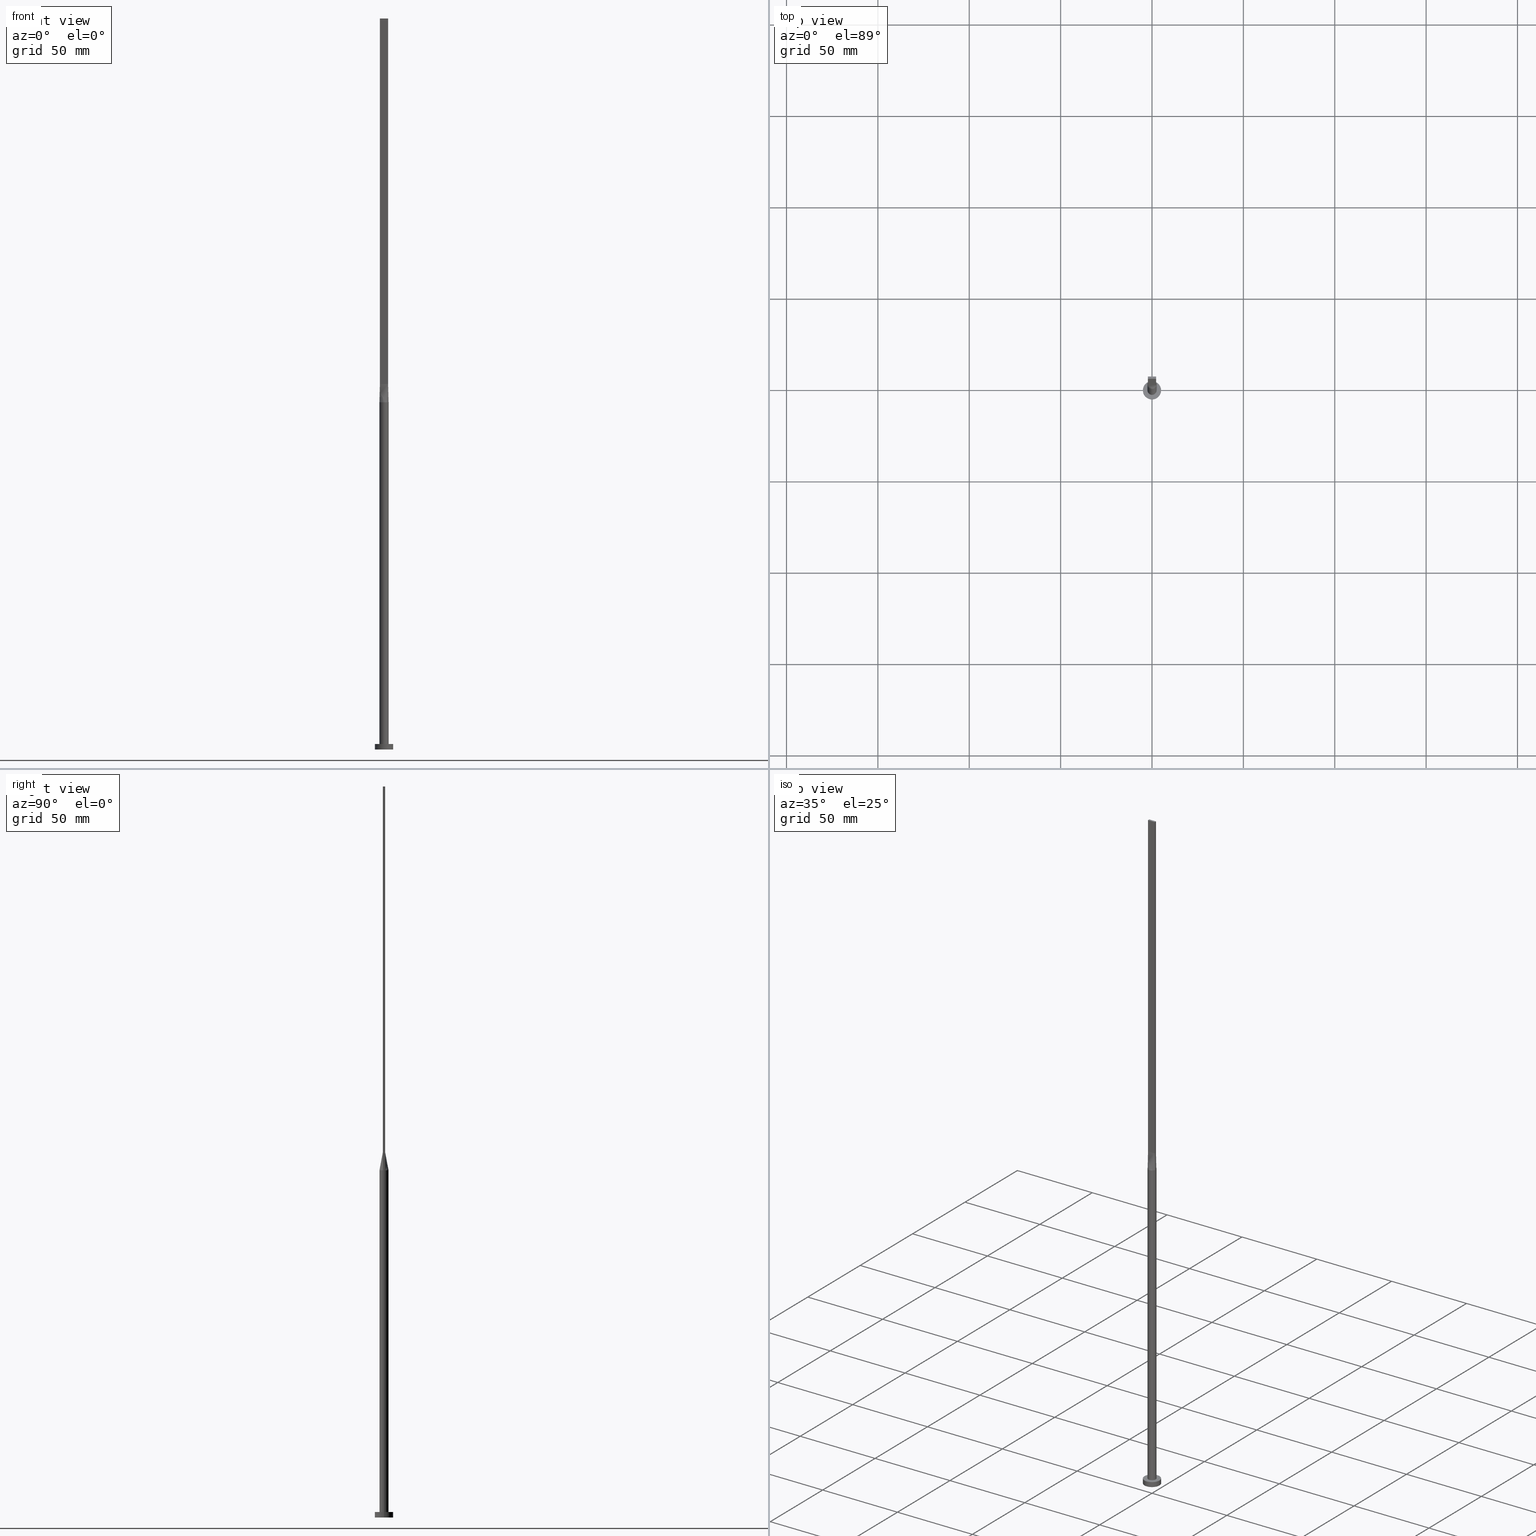
[diagram: canonical four-view strip — front | top / right | iso, engineering-drawing reading convention]
A machine part, canonical four-view strip (front | top / right | iso — engineering-drawing reading convention). The complete STEP part file that produces these views, byte-faithful:
ISO-10303-21;
HEADER;
FILE_DESCRIPTION (( 'STEP AP203' ),
    '1' );
FILE_NAME ('2ca6.STEP',
    '2023-02-13T12:31:42',
    ( '' ),
    ( '' ),
    'SwSTEP 2.0',
    'SolidWorks 2019',
    '' );
FILE_SCHEMA (( 'CONFIG_CONTROL_DESIGN' ));
ENDSEC;

DATA;
#1 = DIRECTION ( 'NONE',  ( -0.000000000000000000, -0.000000000000000000, -1.000000000000000000 ) ) ;
#2 = AXIS2_PLACEMENT_3D ( 'NONE', #529, #130, #193 ) ;
#3 = EDGE_LOOP ( 'NONE', ( #522, #57, #399, #187 ) ) ;
#4 = APPROVAL ( #259, 'NEUR�EN�' ) ;
#5 = CARTESIAN_POINT ( 'NONE',  ( 2.249999999999999556, 0.6000000000000001998, 200.0000000000000000 ) ) ;
#6 = CARTESIAN_POINT ( 'NONE',  ( 1.312499999999998890, 0.6000000000000000888, 200.0000000000000000 ) ) ;
#7 = CARTESIAN_POINT ( 'NONE',  ( -2.249999999999999556, 0.6000000000000001998, 200.0000000000000000 ) ) ;
#8 = CARTESIAN_POINT ( 'NONE',  ( -2.249999999999999556, 0.6000000000000001998, 200.0000000000000000 ) ) ;
#9 = CARTESIAN_POINT ( 'NONE',  ( 0.3750000000000005551, -0.5999999999999996447, 200.0000000000000000 ) ) ;
#10 = VERTEX_POINT ( 'NONE', #88 ) ;
#11 = DIRECTION ( 'NONE',  ( 1.000000000000000000, -7.228014483236697048E-17, 0.000000000000000000 ) ) ;
#12 = FACE_OUTER_BOUND ( 'NONE', #131, .T. ) ;
#13 = ORIENTED_EDGE ( 'NONE', *, *, #276, .F. ) ;
#14 = CARTESIAN_POINT ( 'NONE',  ( 2.250000000000000000, -0.5999999999999997558, 200.0000000000000000 ) ) ;
#15 = ADVANCED_FACE ( 'NONE', ( #484 ), #16, .T. ) ;
#16 = B_SPLINE_SURFACE_WITH_KNOTS ( 'NONE', 3, 1, ( 
 ( #394, #438 ),
 ( #177, #138 ),
 ( #84, #436 ),
 ( #566, #571 ),
 ( #576, #526 ),
 ( #386, #530 ),
 ( #222, #253 ),
 ( #205, #563 ),
 ( #209, #165 ),
 ( #121, #28 ),
 ( #418, #9 ),
 ( #229, #319 ),
 ( #501, #42 ),
 ( #185, #273 ),
 ( #581, #463 ),
 ( #355, #233 ),
 ( #473, #378 ),
 ( #424, #14 ) ),
 .UNSPECIFIED., .F., .F., .F.,
 ( 4, 2, 2, 2, 2, 2, 2, 2, 4 ),
 ( 2, 2 ),
 ( 0.000000000000000000, 0.1250000000000000000, 0.2500000000000000000, 0.3750000000000000000, 0.4999999999999999445, 0.6250000000000000000, 0.7500000000000000000, 0.8750000000000000000, 1.000000000000000000 ),
 ( 0.000000000000000000, 1.000000000000000000 ),
 .UNSPECIFIED. ) ;
#17 = CARTESIAN_POINT ( 'NONE',  ( -2.332793674501557835, -0.6220783132004148452, 195.0000000000000000 ) ) ;
#18 = CALENDAR_DATE ( 2023, 13, 2 ) ;
#19 = DATE_AND_TIME ( #18, #521 ) ;
#20 = CARTESIAN_POINT ( 'NONE',  ( -2.042400361660746899, 1.461628045180436430, 190.0000000000000284 ) ) ;
#21 = DIRECTION ( 'NONE',  ( 1.000000000000000000, 0.000000000000000000, 0.000000000000000000 ) ) ;
#22 = CARTESIAN_POINT ( 'NONE',  ( -2.062499999999999112, 0.6000000000000000888, 200.0000000000000000 ) ) ;
#23 = ORIENTED_EDGE ( 'NONE', *, *, #448, .F. ) ;
#24 = CARTESIAN_POINT ( 'NONE',  ( 2.415751997725693823, 0.6442011318043520118, 190.0000000000000000 ) ) ;
#25 = CC_DESIGN_PERSON_AND_ORGANIZATION_ASSIGNMENT ( #52, #414, ( #174 ) ) ;
#26 = VERTEX_POINT ( 'NONE', #557 ) ;
#27 = DIRECTION ( 'NONE',  ( 3.614007241618348771E-16, -1.000000000000000000, 0.000000000000000000 ) ) ;
#28 = CARTESIAN_POINT ( 'NONE',  ( 0.1875000000000006384, -0.5999999999999996447, 200.0000000000000284 ) ) ;
#29 = VERTEX_POINT ( 'NONE', #72 ) ;
#30 = PERSON_AND_ORGANIZATION ( #376, #503 ) ;
#31 = ORIENTED_EDGE ( 'NONE', *, *, #252, .F. ) ;
#32 = EDGE_CURVE ( 'NONE', #390, #411, #137, .T. ) ;
#33 = FACE_OUTER_BOUND ( 'NONE', #144, .T. ) ;
#34 = CALENDAR_DATE ( 2023, 13, 2 ) ;
#35 = EDGE_LOOP ( 'NONE', ( #263, #398, #274, #168, #315, #217 ) ) ;
#36 = ORIENTED_EDGE ( 'NONE', *, *, #226, .T. ) ;
#37 = CARTESIAN_POINT ( 'NONE',  ( 2.249999999999999556, 0.6000000000000001998, 400.0000000000000000 ) ) ;
#38 = DIRECTION ( 'NONE',  ( 0.000000000000000000, 0.000000000000000000, 1.000000000000000000 ) ) ;
#39 = APPROVAL_PERSON_ORGANIZATION ( #393, #58, #176 ) ;
#40 = ORIENTED_EDGE ( 'NONE', *, *, #347, .T. ) ;
#41 = PRODUCT ( '2ca6', '2ca6', '', ( #194 ) ) ;
#42 = CARTESIAN_POINT ( 'NONE',  ( 0.9375000000000004441, -0.5999999999999996447, 200.0000000000000000 ) ) ;
#43 = EDGE_LOOP ( 'NONE', ( #40, #83, #105, #13, #97 ) ) ;
#44 = CARTESIAN_POINT ( 'NONE',  ( -5.000000000000000000, 0.000000000000000000, 3.000000000000000000 ) ) ;
#45 = CARTESIAN_POINT ( 'NONE',  ( -2.332793674501557390, 0.6220783132004154004, 195.0000000000000000 ) ) ;
#46 = CC_DESIGN_PERSON_AND_ORGANIZATION_ASSIGNMENT ( #498, #459, ( #174 ) ) ;
#47 = CARTESIAN_POINT ( 'NONE',  ( -0.6394215159088052491, 2.436483607037785326, 190.0000000000000000 ) ) ;
#48 = ORIENTED_EDGE ( 'NONE', *, *, #192, .F. ) ;
#49 = CARTESIAN_POINT ( 'NONE',  ( -2.470912383581262084, -0.4366877467327804907, 190.0000000000000000 ) ) ;
#50 = CIRCLE ( 'NONE', #528, 2.500000000000000000 ) ;
#51 = VERTEX_POINT ( 'NONE', #328 ) ;
#52 = PERSON_AND_ORGANIZATION ( #376, #503 ) ;
#53 = PLANE ( 'NONE',  #431 ) ;
#54 = DIRECTION ( 'NONE',  ( -0.000000000000000000, -0.000000000000000000, -1.000000000000000000 ) ) ;
#55 = CARTESIAN_POINT ( 'NONE',  ( -0.3750000000000008327, 0.6000000000000000888, 200.0000000000000000 ) ) ;
#56 = PERSON_AND_ORGANIZATION ( #376, #503 ) ;
#57 = ORIENTED_EDGE ( 'NONE', *, *, #366, .F. ) ;
#58 = APPROVAL ( #493, 'NEUR�EN�' ) ;
#59 = DIRECTION ( 'NONE',  ( 0.000000000000000000, 0.000000000000000000, 1.000000000000000000 ) ) ;
#60 = CARTESIAN_POINT ( 'NONE',  ( 2.250000000000000000, -0.5999999999999997558, 200.0000000000000000 ) ) ;
#61 = LINE ( 'NONE', #470, #450 ) ;
#62 = ORIENTED_EDGE ( 'NONE', *, *, #383, .F. ) ;
#63 = AXIS2_PLACEMENT_3D ( 'NONE', #520, #162, #377 ) ;
#64 = CC_DESIGN_APPROVAL ( #294, ( #357 ) ) ;
#65 = CARTESIAN_POINT ( 'NONE',  ( -2.470912383581262528, 0.4366877467327810458, 189.9999999999999716 ) ) ;
#66 = CARTESIAN_POINT ( 'NONE',  ( 0.000000000000000000, 0.000000000000000000, 190.0000000000000000 ) ) ;
#67 = CARTESIAN_POINT ( 'NONE',  ( -5.000000000000000000, 0.000000000000000000, 3.000000000000000000 ) ) ;
#68 = VECTOR ( 'NONE', #86, 1000.000000000000000 ) ;
#69 = CARTESIAN_POINT ( 'NONE',  ( -1.499999999999999556, 0.6000000000000000888, 200.0000000000000000 ) ) ;
#70 = AXIS2_PLACEMENT_3D ( 'NONE', #358, #129, #81 ) ;
#71 = CARTESIAN_POINT ( 'NONE',  ( -1.466504377161500727, 2.043814966248090226, 190.0000000000000000 ) ) ;
#72 = CARTESIAN_POINT ( 'NONE',  ( -2.250000000000000000, -0.5999999999999994227, 200.0000000000000000 ) ) ;
#73 = CARTESIAN_POINT ( 'NONE',  ( -2.363720129086103849, 0.8386587010896275896, 190.0000000000000853 ) ) ;
#74 = EDGE_CURVE ( 'NONE', #307, #139, #241, .T. ) ;
#75 = DESIGN_CONTEXT ( 'detailed design', #409, 'design' ) ;
#76 = DIRECTION ( 'NONE',  ( 1.000000000000000000, 0.000000000000000000, 0.000000000000000000 ) ) ;
#77 = DIRECTION ( 'NONE',  ( 1.000000000000000000, 0.000000000000000000, -0.000000000000000000 ) ) ;
#78 = CIRCLE ( 'NONE', #225, 2.500000000000000000 ) ;
#79 = CARTESIAN_POINT ( 'NONE',  ( 0.000000000000000000, 0.000000000000000000, 3.000000000000000000 ) ) ;
#80 = EDGE_LOOP ( 'NONE', ( #534, #373, #567, #531 ) ) ;
#81 = DIRECTION ( 'NONE',  ( 1.000000000000000000, 0.000000000000000000, 0.000000000000000000 ) ) ;
#82 = ADVANCED_FACE ( 'NONE', ( #12 ), #429, .F. ) ;
#83 = ORIENTED_EDGE ( 'NONE', *, *, #383, .T. ) ;
#84 = CARTESIAN_POINT ( 'NONE',  ( -2.283437435282020811, -1.045786430836910474, 189.9999999999999716 ) ) ;
#85 = CARTESIAN_POINT ( 'NONE',  ( 1.874999999999999112, 0.6000000000000001998, 200.0000000000000000 ) ) ;
#86 = DIRECTION ( 'NONE',  ( -0.000000000000000000, -0.000000000000000000, -1.000000000000000000 ) ) ;
#87 = VECTOR ( 'NONE', #261, 1000.000000000000114 ) ;
#88 = CARTESIAN_POINT ( 'NONE',  ( 2.500000000000000000, 3.061616997868383141E-16, 3.000000000000000000 ) ) ;
#89 = CARTESIAN_POINT ( 'NONE',  ( 2.250000000000000000, -0.3999999999999990785, 200.0000000000000000 ) ) ;
#90 = AXIS2_PLACEMENT_3D ( 'NONE', #189, #369, #508 ) ;
#91 = CC_DESIGN_APPROVAL ( #4, ( #174 ) ) ;
#92 = ORIENTED_EDGE ( 'NONE', *, *, #116, .F. ) ;
#93 = CARTESIAN_POINT ( 'NONE',  ( 0.7499999999999988898, 0.6000000000000000888, 200.0000000000000000 ) ) ;
#94 = EDGE_LOOP ( 'NONE', ( #248, #499 ) ) ;
#95 = ORIENTED_EDGE ( 'NONE', *, *, #106, .T. ) ;
#96 = DIRECTION ( 'NONE',  ( 1.000000000000000000, 0.000000000000000000, 0.000000000000000000 ) ) ;
#97 = ORIENTED_EDGE ( 'NONE', *, *, #197, .F. ) ;
#98 = FACE_OUTER_BOUND ( 'NONE', #325, .T. ) ;
#99 = CC_DESIGN_PERSON_AND_ORGANIZATION_ASSIGNMENT ( #30, #213, ( #41 ) ) ;
#100 = AXIS2_PLACEMENT_3D ( 'NONE', #317, #59, #279 ) ;
#101 = CARTESIAN_POINT ( 'NONE',  ( -0.3201159637850009010, 2.500000000000000444, 189.9999999999999716 ) ) ;
#102 = DIRECTION ( 'NONE',  ( 0.000000000000000000, 0.000000000000000000, 1.000000000000000000 ) ) ;
#103 = DIRECTION ( 'NONE',  ( -0.000000000000000000, -0.000000000000000000, -1.000000000000000000 ) ) ;
#104 = VECTOR ( 'NONE', #578, 1000.000000000000000 ) ;
#105 = ORIENTED_EDGE ( 'NONE', *, *, #154, .T. ) ;
#106 = EDGE_CURVE ( 'NONE', #124, #10, #336, .T. ) ;
#107 = VECTOR ( 'NONE', #471, 1000.000000000000114 ) ;
#108 = UNCERTAINTY_MEASURE_WITH_UNIT (LENGTH_MEASURE( 1.000000000000000082E-05 ), #504, 'distance_accuracy_value', 'NONE');
#109 = ADVANCED_FACE ( 'NONE', ( #481 ), #403, .F. ) ;
#110 = DIRECTION ( 'NONE',  ( -1.000000000000000000, 0.000000000000000000, 0.000000000000000000 ) ) ;
#111 = CARTESIAN_POINT ( 'NONE',  ( -2.249999999999999556, 0.6000000000000001998, 400.0000000000000000 ) ) ;
#112 = DATE_AND_TIME ( #518, #575 ) ;
#113 = CARTESIAN_POINT ( 'NONE',  ( -2.249999999999999556, 0.6000000000000001998, 400.0000000000000000 ) ) ;
#114 = AXIS2_PLACEMENT_3D ( 'NONE', #352, #223, #27 ) ;
#115 = CARTESIAN_POINT ( 'NONE',  ( -0.6394215159088052491, 2.436483607037785326, 190.0000000000000000 ) ) ;
#116 = EDGE_CURVE ( 'NONE', #560, #307, #388, .T. ) ;
#117 = CARTESIAN_POINT ( 'NONE',  ( -2.415775789045403688, 0.6442075170323000588, 190.0000000000000000 ) ) ;
#118 = DIRECTION ( 'NONE',  ( 3.614007241618349757E-16, 1.000000000000000000, 0.000000000000000000 ) ) ;
#119 = CARTESIAN_POINT ( 'NONE',  ( -2.415759998437587708, -0.6442033382925431706, 190.0000000000000000 ) ) ;
#120 = DIRECTION ( 'NONE',  ( 1.000000000000000000, 0.000000000000000000, 0.000000000000000000 ) ) ;
#121 = CARTESIAN_POINT ( 'NONE',  ( 0.3201159637850000128, -2.500000000000000888, 190.0000000000000284 ) ) ;
#122 = CARTESIAN_POINT ( 'NONE',  ( 2.249999999999999556, -0.1999999999999987621, 200.0000000000000000 ) ) ;
#123 = CARTESIAN_POINT ( 'NONE',  ( -2.415775789045403688, 0.6442075170323000588, 190.0000000000000000 ) ) ;
#124 = VERTEX_POINT ( 'NONE', #296 ) ;
#125 = ORIENTED_EDGE ( 'NONE', *, *, #32, .T. ) ;
#126 = B_SPLINE_CURVE_WITH_KNOTS ( 'NONE', 3,
 ( #553, #430, #246, #556, #164, #283, #159, #200, #333, #517, #115, #204, #71, #434, #20, #380, #335, #117 ),
 .UNSPECIFIED., .F., .F.,
 ( 4, 2, 2, 2, 2, 2, 2, 2, 4 ),
 ( 0.000000000000000000, 0.1249999999999999445, 0.2499999999999998890, 0.3749999999999998335, 0.4999999999999997780, 0.6249999999999997780, 0.7499999999999997780, 0.8749999999999997780, 1.000000000000000000 ),
 .UNSPECIFIED. ) ;
#127 = PERSON_AND_ORGANIZATION ( #376, #503 ) ;
#128 = CC_DESIGN_APPROVAL ( #58, ( #160 ) ) ;
#129 = DIRECTION ( 'NONE',  ( 0.000000000000000000, 0.000000000000000000, 1.000000000000000000 ) ) ;
#130 = DIRECTION ( 'NONE',  ( 0.000000000000000000, 0.000000000000000000, 1.000000000000000000 ) ) ;
#131 = EDGE_LOOP ( 'NONE', ( #372, #48, #395, #405 ) ) ;
#132 = DATE_TIME_ROLE ( 'creation_date' ) ;
#133 = EDGE_LOOP ( 'NONE', ( #425, #454, #349, #338 ) ) ;
#134 = MANIFOLD_SOLID_BREP ( 'P�idat vysunut�m5', #382 ) ;
#135 = COORDINATED_UNIVERSAL_TIME_OFFSET ( 1, 0, .AHEAD. ) ;
#136 = CARTESIAN_POINT ( 'NONE',  ( 2.415783834663384866, -0.6442097370852554183, 190.0000000000000000 ) ) ;
#137 = CIRCLE ( 'NONE', #464, 2.500000000000000000 ) ;
#138 = CARTESIAN_POINT ( 'NONE',  ( -2.062499999999999556, -0.5999999999999994227, 200.0000000000000000 ) ) ;
#139 = VERTEX_POINT ( 'NONE', #255 ) ;
#140 = CC_DESIGN_DATE_AND_TIME_ASSIGNMENT ( #216, #132, ( #160 ) ) ;
#141 = CARTESIAN_POINT ( 'NONE',  ( 1.212939335911088934, 2.207734225347457002, 189.9999999999999432 ) ) ;
#142 = CARTESIAN_POINT ( 'NONE',  ( 0.000000000000000000, 0.000000000000000000, 0.000000000000000000 ) ) ;
#143 = DIRECTION ( 'NONE',  ( 1.000000000000000000, 0.000000000000000000, 0.000000000000000000 ) ) ;
#144 = EDGE_LOOP ( 'NONE', ( #267, #350, #23, #247 ) ) ;
#145 = ORIENTED_EDGE ( 'NONE', *, *, #415, .T. ) ;
#146 = ORIENTED_EDGE ( 'NONE', *, *, #506, .F. ) ;
#147 = CYLINDRICAL_SURFACE ( 'NONE', #537, 5.000000000000000000 ) ;
#148 = LOCAL_TIME ( 13, 31, 42.00000000000000000, #135 ) ;
#149 = DIRECTION ( 'NONE',  ( -3.614007241618349264E-16, -1.000000000000000000, 0.000000000000000000 ) ) ;
#150 = CYLINDRICAL_SURFACE ( 'NONE', #467, 5.000000000000000000 ) ;
#151 = LINE ( 'NONE', #500, #238 ) ;
#152 = DIRECTION ( 'NONE',  ( -0.000000000000000000, -0.000000000000000000, -1.000000000000000000 ) ) ;
#153 = AXIS2_PLACEMENT_3D ( 'NONE', #574, #38, #143 ) ;
#154 = EDGE_CURVE ( 'NONE', #494, #323, #570, .T. ) ;
#155 = DIRECTION ( 'NONE',  ( -0.000000000000000000, -0.000000000000000000, -1.000000000000000000 ) ) ;
#156 = CIRCLE ( 'NONE', #70, 5.000000000000000000 ) ;
#157 = VECTOR ( 'NONE', #1, 1000.000000000000000 ) ;
#158 = DIRECTION ( 'NONE',  ( 0.000000000000000000, 0.000000000000000000, 1.000000000000000000 ) ) ;
#159 = CARTESIAN_POINT ( 'NONE',  ( 1.212939335911088934, 2.207734225347457002, 189.9999999999999432 ) ) ;
#160 = PRODUCT_DEFINITION ( 'NEZN�M�', '', #174, #75 ) ;
#161 = ADVANCED_FACE ( 'NONE', ( #477 ), #446, .T. ) ;
#162 = DIRECTION ( 'NONE',  ( 0.000000000000000000, 0.000000000000000000, 1.000000000000000000 ) ) ;
#163 = ORIENTED_EDGE ( 'NONE', *, *, #329, .T. ) ;
#164 = CARTESIAN_POINT ( 'NONE',  ( 1.880930080310023289, 1.670304384679167642, 189.9999999999999716 ) ) ;
#165 = CARTESIAN_POINT ( 'NONE',  ( -0.1874999999999993894, -0.5999999999999995337, 200.0000000000000284 ) ) ;
#166 = CARTESIAN_POINT ( 'NONE',  ( 2.499999999999999556, -0.2184061234416767305, 190.0000000000000000 ) ) ;
#167 = CARTESIAN_POINT ( 'NONE',  ( 0.000000000000000000, 0.000000000000000000, 190.0000000000000000 ) ) ;
#168 = ORIENTED_EDGE ( 'NONE', *, *, #243, .F. ) ;
#169 = DATE_AND_TIME ( #262, #368 ) ;
#170 = ADVANCED_FACE ( 'NONE', ( #249 ), #268, .T. ) ;
#171 = CARTESIAN_POINT ( 'NONE',  ( 2.249999999999999556, 0.6000000000000001998, 400.0000000000000000 ) ) ;
#172 = CARTESIAN_POINT ( 'NONE',  ( 0.000000000000000000, 0.000000000000000000, 400.0000000000000000 ) ) ;
#173 = AXIS2_PLACEMENT_3D ( 'NONE', #66, #327, #465 ) ;
#174 = PRODUCT_DEFINITION_FORMATION_WITH_SPECIFIED_SOURCE ( 'LIBOVOLN�', '', #41, .NOT_KNOWN. ) ;
#175 = CARTESIAN_POINT ( 'NONE',  ( 2.249999999999999556, 0.6000000000000001998, 200.0000000000000000 ) ) ;
#176 = APPROVAL_ROLE ( '' ) ;
#177 = CARTESIAN_POINT ( 'NONE',  ( -2.363720129086103405, -0.8386587010896268124, 190.0000000000000000 ) ) ;
#178 = AXIS2_PLACEMENT_3D ( 'NONE', #113, #284, #118 ) ;
#179 = PRODUCT_DEFINITION_SHAPE ( 'NONE', 'NONE',  #160 ) ;
#180 = ADVANCED_FACE ( 'NONE', ( #33 ), #304, .F. ) ;
#181 = CYLINDRICAL_SURFACE ( 'NONE', #573, 2.500000000000000000 ) ;
#182 = EDGE_LOOP ( 'NONE', ( #271, #439, #145, #146 ) ) ;
#183 = CARTESIAN_POINT ( 'NONE',  ( -2.249999999999999556, 0.1999999999999991229, 200.0000000000000000 ) ) ;
#184 = LINE ( 'NONE', #365, #337 ) ;
#185 = CARTESIAN_POINT ( 'NONE',  ( 1.880930080310023511, -1.670304384679167864, 189.9999999999999716 ) ) ;
#186 = CARTESIAN_POINT ( 'NONE',  ( 0.3749999999999987232, 0.6000000000000000888, 200.0000000000000000 ) ) ;
#187 = ORIENTED_EDGE ( 'NONE', *, *, #533, .T. ) ;
#188 = FACE_OUTER_BOUND ( 'NONE', #310, .T. ) ;
#189 = CARTESIAN_POINT ( 'NONE',  ( 0.000000000000000000, 0.000000000000000000, 3.000000000000000000 ) ) ;
#190 = AXIS2_PLACEMENT_3D ( 'NONE', #167, #198, #478 ) ;
#191 = LOCAL_TIME ( 13, 31, 42.00000000000000000, #397 ) ;
#192 = EDGE_CURVE ( 'NONE', #540, #29, #353, .T. ) ;
#193 = DIRECTION ( 'NONE',  ( 1.000000000000000000, 0.000000000000000000, 0.000000000000000000 ) ) ;
#194 = MECHANICAL_CONTEXT ( 'NONE', #309, 'mechanical' ) ;
#195 = CARTESIAN_POINT ( 'NONE',  ( 1.466504377161500949, 2.043814966248089782, 189.9999999999999716 ) ) ;
#196 = VECTOR ( 'NONE', #11, 1000.000000000000000 ) ;
#197 = EDGE_CURVE ( 'NONE', #502, #354, #525, .T. ) ;
#198 = DIRECTION ( 'NONE',  ( 0.000000000000000000, 0.000000000000000000, 1.000000000000000000 ) ) ;
#199 = PERSON_AND_ORGANIZATION ( #376, #503 ) ;
#200 = CARTESIAN_POINT ( 'NONE',  ( 0.6394215159088050271, 2.436483607037784882, 189.9999999999999432 ) ) ;
#201 = CARTESIAN_POINT ( 'NONE',  ( -2.415587349003115669, 0.6441566264008307119, 190.0000000000000000 ) ) ;
#202 = DATE_TIME_ROLE ( 'classification_date' ) ;
#203 = AXIS2_PLACEMENT_3D ( 'NONE', #172, #218, #77 ) ;
#204 = CARTESIAN_POINT ( 'NONE',  ( -1.212939335911090044, 2.207734225347456114, 189.9999999999999147 ) ) ;
#205 = CARTESIAN_POINT ( 'NONE',  ( -0.6394215159088060263, -2.436483607037785326, 190.0000000000000000 ) ) ;
#206 = ADVANCED_FACE ( 'NONE', ( #440, #396 ), #489, .T. ) ;
#207 = VECTOR ( 'NONE', #306, 1000.000000000000000 ) ;
#208 = CARTESIAN_POINT ( 'NONE',  ( -2.250000000000000000, -0.5999999999999994227, 400.0000000000000000 ) ) ;
#209 = CARTESIAN_POINT ( 'NONE',  ( -0.3201159637850009565, -2.499999999999999112, 189.9999999999999432 ) ) ;
#210 = ADVANCED_FACE ( 'NONE', ( #568 ), #511, .T. ) ;
#211 = VERTEX_POINT ( 'NONE', #119 ) ;
#212 = CARTESIAN_POINT ( 'NONE',  ( 0.000000000000000000, 0.000000000000000000, 3.000000000000000000 ) ) ;
#213 = PERSON_AND_ORGANIZATION_ROLE ( 'design_owner' ) ;
#214 = ORIENTED_EDGE ( 'NONE', *, *, #458, .T. ) ;
#215 = DIRECTION ( 'NONE',  ( -0.000000000000000000, -0.000000000000000000, -1.000000000000000000 ) ) ;
#216 = DATE_AND_TIME ( #34, #191 ) ;
#217 = ORIENTED_EDGE ( 'NONE', *, *, #433, .T. ) ;
#218 = DIRECTION ( 'NONE',  ( 0.000000000000000000, 0.000000000000000000, 1.000000000000000000 ) ) ;
#219 = VECTOR ( 'NONE', #155, 1000.000000000000000 ) ;
#220 = EDGE_CURVE ( 'NONE', #10, #224, #78, .T. ) ;
#221 = EDGE_CURVE ( 'NONE', #488, #445, #408, .T. ) ;
#222 = CARTESIAN_POINT ( 'NONE',  ( -1.212939335911091154, -2.207734225347456558, 190.0000000000000568 ) ) ;
#223 = DIRECTION ( 'NONE',  ( -1.000000000000000000, -3.614007241618348771E-16, 0.000000000000000000 ) ) ;
#224 = VERTEX_POINT ( 'NONE', #536 ) ;
#225 = AXIS2_PLACEMENT_3D ( 'NONE', #292, #476, #76 ) ;
#226 = EDGE_CURVE ( 'NONE', #390, #139, #311, .T. ) ;
#227 = VERTEX_POINT ( 'NONE', #314 ) ;
#228 = CYLINDRICAL_SURFACE ( 'NONE', #173, 2.500000000000000000 ) ;
#229 = CARTESIAN_POINT ( 'NONE',  ( 1.212939335911089378, -2.207734225347456558, 190.0000000000000284 ) ) ;
#230 = CARTESIAN_POINT ( 'NONE',  ( -2.500000000000000000, 0.000000000000000000, 190.0000000000000000 ) ) ;
#231 = CARTESIAN_POINT ( 'NONE',  ( 0.6394215159088050271, 2.436483607037784882, 189.9999999999999432 ) ) ;
#232 = LINE ( 'NONE', #421, #196 ) ;
#233 = CARTESIAN_POINT ( 'NONE',  ( 1.875000000000000444, -0.5999999999999997558, 200.0000000000000000 ) ) ;
#234 = AXIS2_PLACEMENT_3D ( 'NONE', #212, #392, #565 ) ;
#235 = CARTESIAN_POINT ( 'NONE',  ( 1.880930080310023289, 1.670304384679167642, 189.9999999999999716 ) ) ;
#236 = EDGE_CURVE ( 'NONE', #560, #323, #457, .T. ) ;
#237 = CIRCLE ( 'NONE', #2, 2.500000000000000000 ) ;
#238 = VECTOR ( 'NONE', #149, 1000.000000000000000 ) ;
#239 = CARTESIAN_POINT ( 'NONE',  ( -2.249999999999999556, -0.2000000000000007327, 200.0000000000000000 ) ) ;
#240 = DIRECTION ( 'NONE',  ( -1.000000000000000000, 7.228014483236697048E-17, 0.000000000000000000 ) ) ;
#241 = LINE ( 'NONE', #111, #334 ) ;
#242 = B_SPLINE_SURFACE_WITH_KNOTS ( 'NONE', 3, 1, ( 
 ( #416, #7 ),
 ( #65, #507 ),
 ( #422, #183 ),
 ( #362, #239 ),
 ( #49, #419 ),
 ( #541, #512 ) ),
 .UNSPECIFIED., .F., .F., .F.,
 ( 4, 2, 4 ),
 ( 2, 2 ),
 ( 0.000000000000000000, 0.5000000000000000000, 1.000000000000000000 ),
 ( 0.000000000000000000, 1.000000000000000000 ),
 .UNSPECIFIED. ) ;
#243 = EDGE_CURVE ( 'NONE', #411, #211, #237, .T. ) ;
#244 = CARTESIAN_POINT ( 'NONE',  ( 0.000000000000000000, 0.000000000000000000, 190.0000000000000000 ) ) ;
#245 = CARTESIAN_POINT ( 'NONE',  ( -2.283437435282019923, 1.045786430836911141, 190.0000000000000000 ) ) ;
#246 = CARTESIAN_POINT ( 'NONE',  ( 2.283437435282019923, 1.045786430836911585, 190.0000000000000284 ) ) ;
#247 = ORIENTED_EDGE ( 'NONE', *, *, #375, .T. ) ;
#248 = ORIENTED_EDGE ( 'NONE', *, *, #366, .T. ) ;
#249 = FACE_OUTER_BOUND ( 'NONE', #43, .T. ) ;
#250 = DIRECTION ( 'NONE',  ( -3.614007241618348278E-16, 1.000000000000000000, 0.000000000000000000 ) ) ;
#251 = DIRECTION ( 'NONE',  ( 0.000000000000000000, -1.000000000000000000, 0.000000000000000000 ) ) ;
#252 = EDGE_CURVE ( 'NONE', #411, #224, #371, .T. ) ;
#253 = CARTESIAN_POINT ( 'NONE',  ( -0.7499999999999993339, -0.5999999999999994227, 200.0000000000000284 ) ) ;
#254 = CARTESIAN_POINT ( 'NONE',  ( 2.250000000000000000, -0.5999999999999997558, 200.0000000000000000 ) ) ;
#255 = CARTESIAN_POINT ( 'NONE',  ( -2.249999999999999556, 0.6000000000000001998, 200.0000000000000000 ) ) ;
#256 = APPLICATION_PROTOCOL_DEFINITION ( 'international standard', 'config_control_design', 1994, #409 ) ;
#257 = ORIENTED_EDGE ( 'NONE', *, *, #74, .F. ) ;
#258 = ADVANCED_FACE ( 'NONE', ( #469 ), #147, .T. ) ;
#259 = APPROVAL_STATUS ( 'not_yet_approved' ) ;
#260 = ADVANCED_FACE ( 'NONE', ( #330 ), #150, .T. ) ;
#261 = DIRECTION ( 'NONE',  ( -0.01655630387018621266, -0.004415014365382921926, 0.9998531874481929593 ) ) ;
#262 = CALENDAR_DATE ( 2023, 13, 2 ) ;
#263 = ORIENTED_EDGE ( 'NONE', *, *, #106, .F. ) ;
#264 = CARTESIAN_POINT ( 'NONE',  ( 0.1874999999999984457, 0.6000000000000000888, 200.0000000000000284 ) ) ;
#265 = ADVANCED_FACE ( 'NONE', ( #278 ), #228, .T. ) ;
#266 = CARTESIAN_POINT ( 'NONE',  ( 0.3201159637850002349, 2.500000000000000888, 189.9999999999999716 ) ) ;
#267 = ORIENTED_EDGE ( 'NONE', *, *, #276, .T. ) ;
#268 = B_SPLINE_SURFACE_WITH_KNOTS ( 'NONE', 3, 1, ( 
 ( #437, #254 ),
 ( #580, #89 ),
 ( #166, #122 ),
 ( #577, #401 ),
 ( #298, #308 ),
 ( #452, #175 ) ),
 .UNSPECIFIED., .F., .F., .F.,
 ( 4, 2, 4 ),
 ( 2, 2 ),
 ( 0.000000000000000000, 0.5000000000000000000, 1.000000000000000000 ),
 ( 0.000000000000000000, 1.000000000000000000 ),
 .UNSPECIFIED. ) ;
#269 = VECTOR ( 'NONE', #410, 1000.000000000000114 ) ;
#270 = CARTESIAN_POINT ( 'NONE',  ( 0.000000000000000000, 0.000000000000000000, 3.000000000000000000 ) ) ;
#271 = ORIENTED_EDGE ( 'NONE', *, *, #221, .F. ) ;
#272 = DIRECTION ( 'NONE',  ( 1.000000000000000000, 3.552713678800500929E-15, 0.000000000000000000 ) ) ;
#273 = CARTESIAN_POINT ( 'NONE',  ( 1.312500000000000222, -0.5999999999999997558, 200.0000000000000000 ) ) ;
#274 = ORIENTED_EDGE ( 'NONE', *, *, #546, .F. ) ;
#275 = APPROVAL_DATE_TIME ( #490, #4 ) ;
#276 = EDGE_CURVE ( 'NONE', #354, #323, #513, .T. ) ;
#277 = VECTOR ( 'NONE', #215, 1000.000000000000000 ) ;
#278 = FACE_OUTER_BOUND ( 'NONE', #35, .T. ) ;
#279 = DIRECTION ( 'NONE',  ( 1.000000000000000000, 0.000000000000000000, 0.000000000000000000 ) ) ;
#280 = DIRECTION ( 'NONE',  ( 7.228014483236697048E-17, 1.000000000000000000, -0.000000000000000000 ) ) ;
#281 = PLANE ( 'NONE',  #300 ) ;
#282 = ADVANCED_FACE ( 'NONE', ( #324 ), #281, .F. ) ;
#283 = CARTESIAN_POINT ( 'NONE',  ( 1.466504377161500949, 2.043814966248089782, 189.9999999999999716 ) ) ;
#284 = DIRECTION ( 'NONE',  ( 1.000000000000000000, -3.614007241618349757E-16, 0.000000000000000000 ) ) ;
#285 = ADVANCED_BREP_SHAPE_REPRESENTATION ( '2ca6', ( #134, #351 ), #289 ) ;
#286 = CARTESIAN_POINT ( 'NONE',  ( 2.250000000000000000, -0.5999999999999997558, 400.0000000000000000 ) ) ;
#287 = CARTESIAN_POINT ( 'NONE',  ( -1.880930080310023733, 1.670304384679167420, 189.9999999999999432 ) ) ;
#288 = CIRCLE ( 'NONE', #90, 5.000000000000000000 ) ;
#289 =( GEOMETRIC_REPRESENTATION_CONTEXT ( 3 ) GLOBAL_UNCERTAINTY_ASSIGNED_CONTEXT ( ( #108 ) ) GLOBAL_UNIT_ASSIGNED_CONTEXT ( ( #504, #426, #367 ) ) REPRESENTATION_CONTEXT ( 'NONE', 'WORKASPACE' ) );
#290 = APPROVAL_DATE_TIME ( #112, #294 ) ;
#291 = CARTESIAN_POINT ( 'NONE',  ( 5.000000000000000000, 6.123233995736766282E-16, 3.000000000000000000 ) ) ;
#292 = CARTESIAN_POINT ( 'NONE',  ( 0.000000000000000000, 0.000000000000000000, 3.000000000000000000 ) ) ;
#293 = ORIENTED_EDGE ( 'NONE', *, *, #197, .T. ) ;
#294 = APPROVAL ( #331, 'NEUR�EN�' ) ;
#295 = DIRECTION ( 'NONE',  ( -0.000000000000000000, -0.000000000000000000, -1.000000000000000000 ) ) ;
#296 = CARTESIAN_POINT ( 'NONE',  ( 2.499999999999999556, 1.077931475469669239E-17, 190.0000000000000000 ) ) ;
#297 = EDGE_LOOP ( 'NONE', ( #62, #95, #343, #31, #461, #547 ) ) ;
#298 = CARTESIAN_POINT ( 'NONE',  ( 2.470912383581261640, 0.4366877467327808238, 190.0000000000000000 ) ) ;
#299 = EDGE_LOOP ( 'NONE', ( #214, #36, #342, #479 ) ) ;
#300 = AXIS2_PLACEMENT_3D ( 'NONE', #413, #280, #240 ) ;
#301 = CARTESIAN_POINT ( 'NONE',  ( 2.363720129086103405, 0.8386587010896275896, 190.0000000000000000 ) ) ;
#302 = ADVANCED_FACE ( 'NONE', ( #427 ), #181, .T. ) ;
#303 = EDGE_LOOP ( 'NONE', ( #407, #485 ) ) ;
#304 = PLANE ( 'NONE',  #114 ) ;
#305 = PERSON_AND_ORGANIZATION ( #376, #503 ) ;
#306 = DIRECTION ( 'NONE',  ( -0.000000000000000000, -0.000000000000000000, -1.000000000000000000 ) ) ;
#307 = VERTEX_POINT ( 'NONE', #539 ) ;
#308 = CARTESIAN_POINT ( 'NONE',  ( 2.249999999999999556, 0.4000000000000008549, 200.0000000000000000 ) ) ;
#309 = APPLICATION_CONTEXT ( 'configuration controlled 3d designs of mechanical parts and assemblies' ) ;
#310 = EDGE_LOOP ( 'NONE', ( #125, #389, #509, #321, #404 ) ) ;
#311 = LINE ( 'NONE', #45, #269 ) ;
#312 = CARTESIAN_POINT ( 'NONE',  ( 1.499999999999998890, 0.6000000000000000888, 200.0000000000000000 ) ) ;
#313 = DIRECTION ( 'NONE',  ( 0.000000000000000000, 0.000000000000000000, 1.000000000000000000 ) ) ;
#314 = CARTESIAN_POINT ( 'NONE',  ( 5.000000000000000000, 6.123233995736766282E-16, 0.000000000000000000 ) ) ;
#315 = ORIENTED_EDGE ( 'NONE', *, *, #252, .T. ) ;
#316 = CARTESIAN_POINT ( 'NONE',  ( -0.7500000000000002220, 0.6000000000000000888, 200.0000000000000000 ) ) ;
#317 = CARTESIAN_POINT ( 'NONE',  ( 0.000000000000000000, 0.000000000000000000, 190.0000000000000000 ) ) ;
#318 = CARTESIAN_POINT ( 'NONE',  ( 2.249999999999999556, 0.6000000000000001998, 200.0000000000000000 ) ) ;
#319 = CARTESIAN_POINT ( 'NONE',  ( 0.7500000000000004441, -0.5999999999999996447, 200.0000000000000000 ) ) ;
#320 = SECURITY_CLASSIFICATION_LEVEL ( 'unclassified' ) ;
#321 = ORIENTED_EDGE ( 'NONE', *, *, #552, .F. ) ;
#322 = CARTESIAN_POINT ( 'NONE',  ( 0.000000000000000000, 0.000000000000000000, 190.0000000000000000 ) ) ;
#323 = VERTEX_POINT ( 'NONE', #318 ) ;
#324 = FACE_OUTER_BOUND ( 'NONE', #80, .T. ) ;
#325 = EDGE_LOOP ( 'NONE', ( #344, #451 ) ) ;
#326 = CARTESIAN_POINT ( 'NONE',  ( 0.000000000000000000, 0.000000000000000000, 0.000000000000000000 ) ) ;
#327 = DIRECTION ( 'NONE',  ( -0.000000000000000000, -0.000000000000000000, -1.000000000000000000 ) ) ;
#328 = CARTESIAN_POINT ( 'NONE',  ( 2.250000000000000000, -0.5999999999999997558, 400.0000000000000000 ) ) ;
#329 = EDGE_CURVE ( 'NONE', #323, #139, #417, .T. ) ;
#330 = FACE_OUTER_BOUND ( 'NONE', #3, .T. ) ;
#331 = APPROVAL_STATUS ( 'not_yet_approved' ) ;
#332 = CARTESIAN_POINT ( 'NONE',  ( -2.499999999999999556, -1.638601646481158325E-16, 190.0000000000000000 ) ) ;
#333 = CARTESIAN_POINT ( 'NONE',  ( 0.3201159637850002349, 2.500000000000000888, 189.9999999999999716 ) ) ;
#334 = VECTOR ( 'NONE', #103, 1000.000000000000000 ) ;
#335 = CARTESIAN_POINT ( 'NONE',  ( -2.363720129086103849, 0.8386587010896275896, 190.0000000000000853 ) ) ;
#336 = LINE ( 'NONE', #443, #68 ) ;
#337 = VECTOR ( 'NONE', #542, 1000.000000000000000 ) ;
#338 = ORIENTED_EDGE ( 'NONE', *, *, #448, .T. ) ;
#339 = EDGE_CURVE ( 'NONE', #307, #540, #184, .T. ) ;
#340 = CARTESIAN_POINT ( 'NONE',  ( 5.000000000000000000, 6.123233995736766282E-16, 3.000000000000000000 ) ) ;
#341 = DIRECTION ( 'NONE',  ( 0.000000000000000000, -0.000000000000000000, -1.000000000000000000 ) ) ;
#342 = ORIENTED_EDGE ( 'NONE', *, *, #329, .F. ) ;
#343 = ORIENTED_EDGE ( 'NONE', *, *, #220, .T. ) ;
#344 = ORIENTED_EDGE ( 'NONE', *, *, #533, .F. ) ;
#345 = CARTESIAN_POINT ( 'NONE',  ( 2.415587349003115669, 0.6441566264008308229, 190.0000000000000000 ) ) ;
#346 = APPROVAL_DATE_TIME ( #169, #58 ) ;
#347 = EDGE_CURVE ( 'NONE', #502, #124, #356, .T. ) ;
#348 = DIRECTION ( 'NONE',  ( -0.000000000000000000, -0.000000000000000000, -1.000000000000000000 ) ) ;
#349 = ORIENTED_EDGE ( 'NONE', *, *, #364, .T. ) ;
#350 = ORIENTED_EDGE ( 'NONE', *, *, #236, .F. ) ;
#351 = AXIS2_PLACEMENT_3D ( 'NONE', #142, #313, #96 ) ;
#352 = CARTESIAN_POINT ( 'NONE',  ( 2.250000000000000000, -0.5999999999999997558, 400.0000000000000000 ) ) ;
#353 = LINE ( 'NONE', #208, #277 ) ;
#354 = VERTEX_POINT ( 'NONE', #60 ) ;
#355 = CARTESIAN_POINT ( 'NONE',  ( 2.283437435282019479, -1.045786430836911363, 190.0000000000000284 ) ) ;
#356 = CIRCLE ( 'NONE', #491, 2.500000000000000000 ) ;
#357 = SECURITY_CLASSIFICATION ( '', '', #320 ) ;
#358 = CARTESIAN_POINT ( 'NONE',  ( 0.000000000000000000, 0.000000000000000000, 0.000000000000000000 ) ) ;
#359 = CARTESIAN_POINT ( 'NONE',  ( 2.332793674501557390, 0.6220783132004152893, 195.0000000000000000 ) ) ;
#360 = CARTESIAN_POINT ( 'NONE',  ( -1.212939335911090044, 2.207734225347456114, 189.9999999999999147 ) ) ;
#361 = DIRECTION ( 'NONE',  ( -1.000000000000000000, 0.000000000000000000, 0.000000000000000000 ) ) ;
#362 = CARTESIAN_POINT ( 'NONE',  ( -2.499999999999999112, -0.2184061234416761199, 189.9999999999999432 ) ) ;
#363 = AXIS2_PLACEMENT_3D ( 'NONE', #449, #251, #341 ) ;
#364 = EDGE_CURVE ( 'NONE', #540, #51, #232, .T. ) ;
#365 = CARTESIAN_POINT ( 'NONE',  ( -2.249999999999999556, 0.6000000000000001998, 400.0000000000000000 ) ) ;
#366 = EDGE_CURVE ( 'NONE', #445, #488, #288, .T. ) ;
#367 =( NAMED_UNIT ( * ) SI_UNIT ( $, .STERADIAN. ) SOLID_ANGLE_UNIT ( ) );
#368 = LOCAL_TIME ( 13, 31, 42.00000000000000000, #569 ) ;
#369 = DIRECTION ( 'NONE',  ( 0.000000000000000000, 0.000000000000000000, 1.000000000000000000 ) ) ;
#370 = APPLICATION_PROTOCOL_DEFINITION ( 'international standard', 'config_control_design', 1994, #309 ) ;
#371 = LINE ( 'NONE', #230, #219 ) ;
#372 = ORIENTED_EDGE ( 'NONE', *, *, #552, .T. ) ;
#373 = ORIENTED_EDGE ( 'NONE', *, *, #375, .F. ) ;
#374 = VECTOR ( 'NONE', #348, 1000.000000000000000 ) ;
#375 = EDGE_CURVE ( 'NONE', #51, #354, #61, .T. ) ;
#376 = PERSON ( 'NEUR�EN�', 'NEUR�EN�', 'NEUR�EN�', ('NEUR�EN�'), ('NEUR�EN�'), ('NEUR�EN�') ) ;
#377 = DIRECTION ( 'NONE',  ( 1.000000000000000000, 0.000000000000000000, 0.000000000000000000 ) ) ;
#378 = CARTESIAN_POINT ( 'NONE',  ( 2.062500000000000000, -0.5999999999999997558, 200.0000000000000000 ) ) ;
#379 = COORDINATED_UNIVERSAL_TIME_OFFSET ( 1, 0, .AHEAD. ) ;
#380 = CARTESIAN_POINT ( 'NONE',  ( -2.283437435282019923, 1.045786430836911141, 190.0000000000000000 ) ) ;
#381 = CARTESIAN_POINT ( 'NONE',  ( -2.249999999999999556, 0.6000000000000001998, 200.0000000000000000 ) ) ;
#382 = CLOSED_SHELL ( 'NONE', ( #302, #258, #260, #206, #554, #265, #15, #170, #564, #210, #109, #82, #282, #180, #161 ) ) ;
#383 = EDGE_CURVE ( 'NONE', #124, #494, #423, .T. ) ;
#384 = LINE ( 'NONE', #523, #561 ) ;
#385 = VECTOR ( 'NONE', #250, 1000.000000000000000 ) ;
#386 = CARTESIAN_POINT ( 'NONE',  ( -1.466504377161501171, -2.043814966248090226, 190.0000000000000284 ) ) ;
#387 = DIRECTION ( 'NONE',  ( -0.01655630387018616756, 0.004415014365382954886, 0.9998531874481929593 ) ) ;
#388 = LINE ( 'NONE', #37, #104 ) ;
#389 = ORIENTED_EDGE ( 'NONE', *, *, #243, .T. ) ;
#390 = VERTEX_POINT ( 'NONE', #123 ) ;
#391 = EDGE_CURVE ( 'NONE', #29, #354, #384, .T. ) ;
#392 = DIRECTION ( 'NONE',  ( 0.000000000000000000, 0.000000000000000000, 1.000000000000000000 ) ) ;
#393 = PERSON_AND_ORGANIZATION ( #376, #503 ) ;
#394 = CARTESIAN_POINT ( 'NONE',  ( -2.415587349003116113, -0.6441566264008301568, 190.0000000000000000 ) ) ;
#395 = ORIENTED_EDGE ( 'NONE', *, *, #339, .F. ) ;
#396 = FACE_OUTER_BOUND ( 'NONE', #94, .T. ) ;
#397 = COORDINATED_UNIVERSAL_TIME_OFFSET ( 1, 0, .AHEAD. ) ;
#398 = ORIENTED_EDGE ( 'NONE', *, *, #347, .F. ) ;
#399 = ORIENTED_EDGE ( 'NONE', *, *, #506, .T. ) ;
#400 = APPROVAL_PERSON_ORGANIZATION ( #305, #4, #447 ) ;
#401 = CARTESIAN_POINT ( 'NONE',  ( 2.249999999999999556, 0.2000000000000011768, 200.0000000000000000 ) ) ;
#402 = CALENDAR_DATE ( 2023, 13, 2 ) ;
#403 = PLANE ( 'NONE',  #363 ) ;
#404 = ORIENTED_EDGE ( 'NONE', *, *, #226, .F. ) ;
#405 = ORIENTED_EDGE ( 'NONE', *, *, #74, .T. ) ;
#406 = CC_DESIGN_DATE_AND_TIME_ASSIGNMENT ( #19, #202, ( #357 ) ) ;
#407 = ORIENTED_EDGE ( 'NONE', *, *, #433, .F. ) ;
#408 = CIRCLE ( 'NONE', #153, 5.000000000000000000 ) ;
#409 = APPLICATION_CONTEXT ( 'configuration controlled 3d designs of mechanical parts and assemblies' ) ;
#410 = DIRECTION ( 'NONE',  ( 0.01655630387018621266, -0.004415014365382944478, 0.9998531874481929593 ) ) ;
#411 = VERTEX_POINT ( 'NONE', #332 ) ;
#412 = VECTOR ( 'NONE', #545, 1000.000000000000000 ) ;
#413 = CARTESIAN_POINT ( 'NONE',  ( -2.250000000000000000, -0.5999999999999994227, 400.0000000000000000 ) ) ;
#414 = PERSON_AND_ORGANIZATION_ROLE ( 'design_supplier' ) ;
#415 = EDGE_CURVE ( 'NONE', #227, #26, #519, .T. ) ;
#416 = CARTESIAN_POINT ( 'NONE',  ( -2.415587349003115669, 0.6441566264008307119, 190.0000000000000000 ) ) ;
#417 = LINE ( 'NONE', #8, #543 ) ;
#418 = CARTESIAN_POINT ( 'NONE',  ( 0.6394215159088044720, -2.436483607037786214, 190.0000000000000568 ) ) ;
#419 = CARTESIAN_POINT ( 'NONE',  ( -2.250000000000000000, -0.4000000000000002998, 200.0000000000000000 ) ) ;
#420 = VECTOR ( 'NONE', #387, 1000.000000000000114 ) ;
#421 = CARTESIAN_POINT ( 'NONE',  ( -2.250000000000000000, -0.5999999999999994227, 400.0000000000000000 ) ) ;
#422 = CARTESIAN_POINT ( 'NONE',  ( -2.499999999999999556, 0.2184061234416766750, 190.0000000000000000 ) ) ;
#423 = CIRCLE ( 'NONE', #190, 2.500000000000000000 ) ;
#424 = CARTESIAN_POINT ( 'NONE',  ( 2.415587349003115669, -0.6441566264008303788, 190.0000000000000000 ) ) ;
#425 = ORIENTED_EDGE ( 'NONE', *, *, #116, .T. ) ;
#426 =( NAMED_UNIT ( * ) PLANE_ANGLE_UNIT ( ) SI_UNIT ( $, .RADIAN. ) );
#427 = FACE_OUTER_BOUND ( 'NONE', #297, .T. ) ;
#428 = LINE ( 'NONE', #286, #385 ) ;
#429 = PLANE ( 'NONE',  #178 ) ;
#430 = CARTESIAN_POINT ( 'NONE',  ( 2.363720129086103405, 0.8386587010896275896, 190.0000000000000000 ) ) ;
#431 = AXIS2_PLACEMENT_3D ( 'NONE', #326, #538, #466 ) ;
#432 = CARTESIAN_POINT ( 'NONE',  ( -2.042400361660746899, 1.461628045180436430, 190.0000000000000284 ) ) ;
#433 = EDGE_CURVE ( 'NONE', #224, #10, #50, .T. ) ;
#434 = CARTESIAN_POINT ( 'NONE',  ( -1.880930080310023733, 1.670304384679167420, 189.9999999999999432 ) ) ;
#435 = DIRECTION ( 'NONE',  ( 1.000000000000000000, -7.228014483236697048E-17, 0.000000000000000000 ) ) ;
#436 = CARTESIAN_POINT ( 'NONE',  ( -1.874999999999999556, -0.5999999999999994227, 200.0000000000000000 ) ) ;
#437 = CARTESIAN_POINT ( 'NONE',  ( 2.415587349003115669, -0.6441566264008309339, 190.0000000000000000 ) ) ;
#438 = CARTESIAN_POINT ( 'NONE',  ( -2.250000000000000000, -0.5999999999999994227, 200.0000000000000000 ) ) ;
#439 = ORIENTED_EDGE ( 'NONE', *, *, #495, .T. ) ;
#440 = FACE_BOUND ( 'NONE', #303, .T. ) ;
#441 = CARTESIAN_POINT ( 'NONE',  ( -2.250000000000000000, -0.5999999999999994227, 400.0000000000000000 ) ) ;
#442 = PERSON_AND_ORGANIZATION_ROLE ( 'creator' ) ;
#443 = CARTESIAN_POINT ( 'NONE',  ( 2.500000000000000000, 3.061616997868383141E-16, 190.0000000000000000 ) ) ;
#444 = ORIENTED_EDGE ( 'NONE', *, *, #391, .F. ) ;
#445 = VERTEX_POINT ( 'NONE', #67 ) ;
#446 = PLANE ( 'NONE',  #203 ) ;
#447 = APPROVAL_ROLE ( '' ) ;
#448 = EDGE_CURVE ( 'NONE', #51, #560, #428, .T. ) ;
#449 = CARTESIAN_POINT ( 'NONE',  ( 2.249999999999999556, 0.6000000000000001998, 400.0000000000000000 ) ) ;
#450 = VECTOR ( 'NONE', #295, 1000.000000000000000 ) ;
#451 = ORIENTED_EDGE ( 'NONE', *, *, #415, .F. ) ;
#452 = CARTESIAN_POINT ( 'NONE',  ( 2.415587349003115669, 0.6441566264008304898, 190.0000000000000000 ) ) ;
#453 = EDGE_CURVE ( 'NONE', #29, #211, #472, .T. ) ;
#454 = ORIENTED_EDGE ( 'NONE', *, *, #339, .T. ) ;
#455 = LINE ( 'NONE', #44, #157 ) ;
#456 = CARTESIAN_POINT ( 'NONE',  ( -0.1875000000000012490, 0.6000000000000000888, 200.0000000000000284 ) ) ;
#457 = LINE ( 'NONE', #171, #374 ) ;
#458 = EDGE_CURVE ( 'NONE', #494, #390, #126, .T. ) ;
#459 = PERSON_AND_ORGANIZATION_ROLE ( 'creator' ) ;
#460 = CARTESIAN_POINT ( 'NONE',  ( 0.000000000000000000, 0.000000000000000000, 190.0000000000000000 ) ) ;
#461 = ORIENTED_EDGE ( 'NONE', *, *, #32, .F. ) ;
#462 = DIRECTION ( 'NONE',  ( -1.000000000000000000, 0.000000000000000000, 0.000000000000000000 ) ) ;
#463 = CARTESIAN_POINT ( 'NONE',  ( 1.500000000000000444, -0.5999999999999997558, 200.0000000000000000 ) ) ;
#464 = AXIS2_PLACEMENT_3D ( 'NONE', #244, #550, #21 ) ;
#465 = DIRECTION ( 'NONE',  ( -1.000000000000000000, 0.000000000000000000, 0.000000000000000000 ) ) ;
#466 = DIRECTION ( 'NONE',  ( 1.000000000000000000, 0.000000000000000000, -0.000000000000000000 ) ) ;
#467 = AXIS2_PLACEMENT_3D ( 'NONE', #270, #515, #462 ) ;
#468 = PRODUCT_RELATED_PRODUCT_CATEGORY ( 'detail', '', ( #41 ) ) ;
#469 = FACE_OUTER_BOUND ( 'NONE', #182, .T. ) ;
#470 = CARTESIAN_POINT ( 'NONE',  ( 2.250000000000000000, -0.5999999999999997558, 400.0000000000000000 ) ) ;
#471 = DIRECTION ( 'NONE',  ( -0.01655630387018621266, -0.004415014365382965295, -0.9998531874481929593 ) ) ;
#472 = LINE ( 'NONE', #17, #107 ) ;
#473 = CARTESIAN_POINT ( 'NONE',  ( 2.363720129086102961, -0.8386587010896274785, 190.0000000000000568 ) ) ;
#474 = CARTESIAN_POINT ( 'NONE',  ( -1.312499999999999778, 0.6000000000000000888, 200.0000000000000000 ) ) ;
#475 = SHAPE_DEFINITION_REPRESENTATION ( #179, #285 ) ;
#476 = DIRECTION ( 'NONE',  ( 0.000000000000000000, 0.000000000000000000, 1.000000000000000000 ) ) ;
#477 = FACE_OUTER_BOUND ( 'NONE', #133, .T. ) ;
#478 = DIRECTION ( 'NONE',  ( 1.000000000000000000, 0.000000000000000000, 0.000000000000000000 ) ) ;
#479 = ORIENTED_EDGE ( 'NONE', *, *, #154, .F. ) ;
#480 = CARTESIAN_POINT ( 'NONE',  ( 2.332793674501557390, -0.6220783132004150673, 195.0000000000000000 ) ) ;
#481 = FACE_OUTER_BOUND ( 'NONE', #579, .T. ) ;
#482 = CC_DESIGN_SECURITY_CLASSIFICATION ( #357, ( #174 ) ) ;
#483 = CARTESIAN_POINT ( 'NONE',  ( 2.062499999999999112, 0.6000000000000001998, 200.0000000000000000 ) ) ;
#484 = FACE_OUTER_BOUND ( 'NONE', #496, .T. ) ;
#485 = ORIENTED_EDGE ( 'NONE', *, *, #220, .F. ) ;
#486 = CARTESIAN_POINT ( 'NONE',  ( 2.042400361660745567, 1.461628045180436430, 189.9999999999999432 ) ) ;
#487 = ORIENTED_EDGE ( 'NONE', *, *, #453, .T. ) ;
#488 = VERTEX_POINT ( 'NONE', #291 ) ;
#489 = PLANE ( 'NONE',  #234 ) ;
#490 = DATE_AND_TIME ( #402, #148 ) ;
#491 = AXIS2_PLACEMENT_3D ( 'NONE', #322, #102, #272 ) ;
#492 = ORIENTED_EDGE ( 'NONE', *, *, #236, .T. ) ;
#493 = APPROVAL_STATUS ( 'not_yet_approved' ) ;
#494 = VERTEX_POINT ( 'NONE', #24 ) ;
#495 = EDGE_CURVE ( 'NONE', #488, #227, #562, .T. ) ;
#496 = EDGE_LOOP ( 'NONE', ( #524, #293, #444, #487 ) ) ;
#497 = CARTESIAN_POINT ( 'NONE',  ( -1.466504377161500727, 2.043814966248090226, 190.0000000000000000 ) ) ;
#498 = PERSON_AND_ORGANIZATION ( #376, #503 ) ;
#499 = ORIENTED_EDGE ( 'NONE', *, *, #221, .T. ) ;
#500 = CARTESIAN_POINT ( 'NONE',  ( -2.249999999999999556, 0.6000000000000001998, 200.0000000000000000 ) ) ;
#501 = CARTESIAN_POINT ( 'NONE',  ( 1.466504377161500727, -2.043814966248090226, 190.0000000000000000 ) ) ;
#502 = VERTEX_POINT ( 'NONE', #136 ) ;
#503 = ORGANIZATION ( 'NEUR�EN�', 'NEUR�EN�', '' ) ;
#504 =( LENGTH_UNIT ( ) NAMED_UNIT ( * ) SI_UNIT ( .MILLI., .METRE. ) );
#505 = DIRECTION ( 'NONE',  ( -1.000000000000000000, -0.000000000000000000, -0.000000000000000000 ) ) ;
#506 = EDGE_CURVE ( 'NONE', #445, #26, #455, .T. ) ;
#507 = CARTESIAN_POINT ( 'NONE',  ( -2.249999999999999556, 0.3999999999999994116, 200.0000000000000000 ) ) ;
#508 = DIRECTION ( 'NONE',  ( 1.000000000000000000, 0.000000000000000000, 0.000000000000000000 ) ) ;
#509 = ORIENTED_EDGE ( 'NONE', *, *, #453, .F. ) ;
#510 = CC_DESIGN_PERSON_AND_ORGANIZATION_ASSIGNMENT ( #56, #559, ( #357 ) ) ;
#511 = B_SPLINE_SURFACE_WITH_KNOTS ( 'NONE', 3, 1, ( 
 ( #345, #527 ),
 ( #301, #483 ),
 ( #572, #85 ),
 ( #486, #312 ),
 ( #235, #6 ),
 ( #195, #535 ),
 ( #141, #93 ),
 ( #231, #186 ),
 ( #266, #264 ),
 ( #101, #456 ),
 ( #47, #55 ),
 ( #360, #316 ),
 ( #497, #555 ),
 ( #287, #474 ),
 ( #432, #69 ),
 ( #245, #558 ),
 ( #73, #22 ),
 ( #201, #381 ) ),
 .UNSPECIFIED., .F., .F., .F.,
 ( 4, 2, 2, 2, 2, 2, 2, 2, 4 ),
 ( 2, 2 ),
 ( 0.000000000000000000, 0.1249999999999999445, 0.2499999999999998890, 0.3749999999999998335, 0.4999999999999997780, 0.6249999999999997780, 0.7499999999999997780, 0.8749999999999997780, 1.000000000000000000 ),
 ( 0.000000000000000000, 1.000000000000000000 ),
 .UNSPECIFIED. ) ;
#512 = CARTESIAN_POINT ( 'NONE',  ( -2.250000000000000000, -0.5999999999999995337, 200.0000000000000000 ) ) ;
#513 = LINE ( 'NONE', #5, #412 ) ;
#514 = APPROVAL_PERSON_ORGANIZATION ( #199, #294, #551 ) ;
#515 = DIRECTION ( 'NONE',  ( -0.000000000000000000, -0.000000000000000000, -1.000000000000000000 ) ) ;
#516 = COORDINATED_UNIVERSAL_TIME_OFFSET ( 1, 0, .AHEAD. ) ;
#517 = CARTESIAN_POINT ( 'NONE',  ( -0.3201159637850009010, 2.500000000000000444, 189.9999999999999716 ) ) ;
#518 = CALENDAR_DATE ( 2023, 13, 2 ) ;
#519 = CIRCLE ( 'NONE', #63, 5.000000000000000000 ) ;
#520 = CARTESIAN_POINT ( 'NONE',  ( 0.000000000000000000, 0.000000000000000000, 0.000000000000000000 ) ) ;
#521 = LOCAL_TIME ( 13, 31, 42.00000000000000000, #379 ) ;
#522 = ORIENTED_EDGE ( 'NONE', *, *, #495, .F. ) ;
#523 = CARTESIAN_POINT ( 'NONE',  ( -2.250000000000000000, -0.5999999999999994227, 200.0000000000000000 ) ) ;
#524 = ORIENTED_EDGE ( 'NONE', *, *, #546, .T. ) ;
#525 = LINE ( 'NONE', #480, #420 ) ;
#526 = CARTESIAN_POINT ( 'NONE',  ( -1.312499999999999334, -0.5999999999999994227, 200.0000000000000000 ) ) ;
#527 = CARTESIAN_POINT ( 'NONE',  ( 2.249999999999999556, 0.6000000000000001998, 200.0000000000000000 ) ) ;
#528 = AXIS2_PLACEMENT_3D ( 'NONE', #79, #158, #120 ) ;
#529 = CARTESIAN_POINT ( 'NONE',  ( 0.000000000000000000, 0.000000000000000000, 190.0000000000000000 ) ) ;
#530 = CARTESIAN_POINT ( 'NONE',  ( -0.9374999999999994449, -0.5999999999999994227, 200.0000000000000284 ) ) ;
#531 = ORIENTED_EDGE ( 'NONE', *, *, #192, .T. ) ;
#532 = CC_DESIGN_PERSON_AND_ORGANIZATION_ASSIGNMENT ( #127, #442, ( #160 ) ) ;
#533 = EDGE_CURVE ( 'NONE', #26, #227, #156, .T. ) ;
#534 = ORIENTED_EDGE ( 'NONE', *, *, #391, .T. ) ;
#535 = CARTESIAN_POINT ( 'NONE',  ( 0.9374999999999988898, 0.6000000000000000888, 200.0000000000000000 ) ) ;
#536 = CARTESIAN_POINT ( 'NONE',  ( -2.500000000000000000, 0.000000000000000000, 3.000000000000000000 ) ) ;
#537 = AXIS2_PLACEMENT_3D ( 'NONE', #549, #152, #110 ) ;
#538 = DIRECTION ( 'NONE',  ( 0.000000000000000000, 0.000000000000000000, 1.000000000000000000 ) ) ;
#539 = CARTESIAN_POINT ( 'NONE',  ( -2.249999999999999556, 0.6000000000000001998, 400.0000000000000000 ) ) ;
#540 = VERTEX_POINT ( 'NONE', #441 ) ;
#541 = CARTESIAN_POINT ( 'NONE',  ( -2.415587349003116113, -0.6441566264008302678, 190.0000000000000000 ) ) ;
#542 = DIRECTION ( 'NONE',  ( -3.614007241618349264E-16, -1.000000000000000000, 0.000000000000000000 ) ) ;
#543 = VECTOR ( 'NONE', #505, 1000.000000000000000 ) ;
#544 = CIRCLE ( 'NONE', #100, 2.500000000000000000 ) ;
#545 = DIRECTION ( 'NONE',  ( -3.614007241618348278E-16, 1.000000000000000000, -0.000000000000000000 ) ) ;
#546 = EDGE_CURVE ( 'NONE', #211, #502, #544, .T. ) ;
#547 = ORIENTED_EDGE ( 'NONE', *, *, #458, .F. ) ;
#548 = CARTESIAN_POINT ( 'NONE',  ( 2.249999999999999556, 0.6000000000000001998, 400.0000000000000000 ) ) ;
#549 = CARTESIAN_POINT ( 'NONE',  ( 0.000000000000000000, 0.000000000000000000, 3.000000000000000000 ) ) ;
#550 = DIRECTION ( 'NONE',  ( 0.000000000000000000, 0.000000000000000000, 1.000000000000000000 ) ) ;
#551 = APPROVAL_ROLE ( '' ) ;
#552 = EDGE_CURVE ( 'NONE', #139, #29, #151, .T. ) ;
#553 = CARTESIAN_POINT ( 'NONE',  ( 2.415751997725693823, 0.6442011318043520118, 190.0000000000000000 ) ) ;
#554 = ADVANCED_FACE ( 'NONE', ( #98 ), #53, .F. ) ;
#555 = CARTESIAN_POINT ( 'NONE',  ( -0.9375000000000002220, 0.6000000000000000888, 200.0000000000000000 ) ) ;
#556 = CARTESIAN_POINT ( 'NONE',  ( 2.042400361660745567, 1.461628045180436430, 189.9999999999999432 ) ) ;
#557 = CARTESIAN_POINT ( 'NONE',  ( -5.000000000000000000, 0.000000000000000000, 0.000000000000000000 ) ) ;
#558 = CARTESIAN_POINT ( 'NONE',  ( -1.874999999999999556, 0.6000000000000000888, 200.0000000000000000 ) ) ;
#559 = PERSON_AND_ORGANIZATION_ROLE ( 'classification_officer' ) ;
#560 = VERTEX_POINT ( 'NONE', #548 ) ;
#561 = VECTOR ( 'NONE', #435, 1000.000000000000000 ) ;
#562 = LINE ( 'NONE', #340, #207 ) ;
#563 = CARTESIAN_POINT ( 'NONE',  ( -0.3749999999999993894, -0.5999999999999994227, 200.0000000000000284 ) ) ;
#564 = ADVANCED_FACE ( 'NONE', ( #188 ), #242, .T. ) ;
#565 = DIRECTION ( 'NONE',  ( 1.000000000000000000, 0.000000000000000000, -0.000000000000000000 ) ) ;
#566 = CARTESIAN_POINT ( 'NONE',  ( -2.042400361660746899, -1.461628045180435986, 190.0000000000000568 ) ) ;
#567 = ORIENTED_EDGE ( 'NONE', *, *, #364, .F. ) ;
#568 = FACE_OUTER_BOUND ( 'NONE', #299, .T. ) ;
#569 = COORDINATED_UNIVERSAL_TIME_OFFSET ( 1, 0, .AHEAD. ) ;
#570 = LINE ( 'NONE', #359, #87 ) ;
#571 = CARTESIAN_POINT ( 'NONE',  ( -1.499999999999999334, -0.5999999999999994227, 200.0000000000000000 ) ) ;
#572 = CARTESIAN_POINT ( 'NONE',  ( 2.283437435282019923, 1.045786430836911585, 190.0000000000000284 ) ) ;
#573 = AXIS2_PLACEMENT_3D ( 'NONE', #460, #54, #361 ) ;
#574 = CARTESIAN_POINT ( 'NONE',  ( 0.000000000000000000, 0.000000000000000000, 3.000000000000000000 ) ) ;
#575 = LOCAL_TIME ( 13, 31, 42.00000000000000000, #516 ) ;
#576 = CARTESIAN_POINT ( 'NONE',  ( -1.880930080310024621, -1.670304384679167420, 190.0000000000000284 ) ) ;
#577 = CARTESIAN_POINT ( 'NONE',  ( 2.499999999999999112, 0.2184061234416761477, 189.9999999999999432 ) ) ;
#578 = DIRECTION ( 'NONE',  ( -1.000000000000000000, 0.000000000000000000, 0.000000000000000000 ) ) ;
#579 = EDGE_LOOP ( 'NONE', ( #163, #257, #92, #492 ) ) ;
#580 = CARTESIAN_POINT ( 'NONE',  ( 2.470912383581262528, -0.4366877467327812123, 189.9999999999999716 ) ) ;
#581 = CARTESIAN_POINT ( 'NONE',  ( 2.042400361660746899, -1.461628045180436652, 190.0000000000000284 ) ) ;
ENDSEC;
END-ISO-10303-21;
